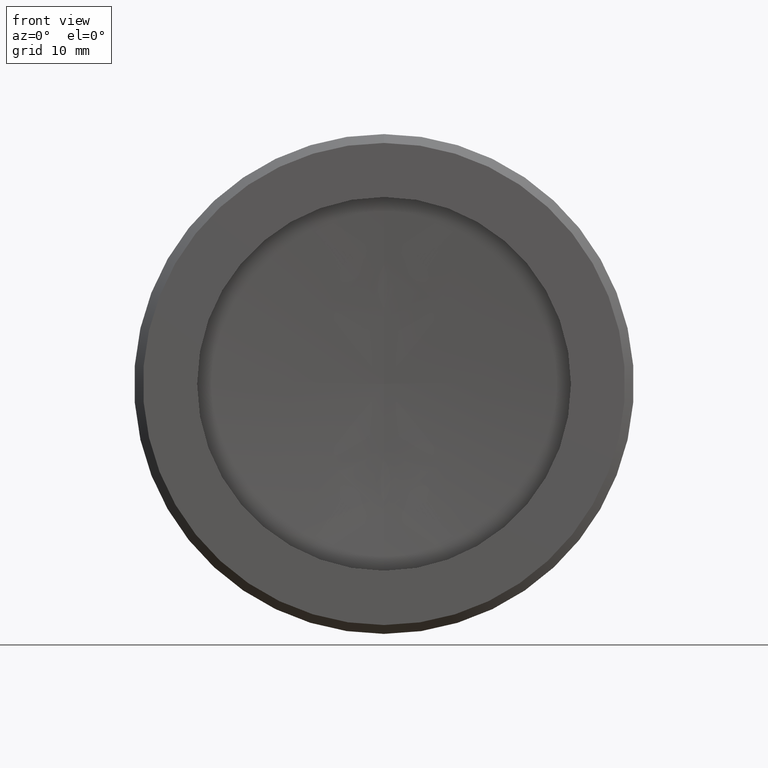
[diagram: clean part render]
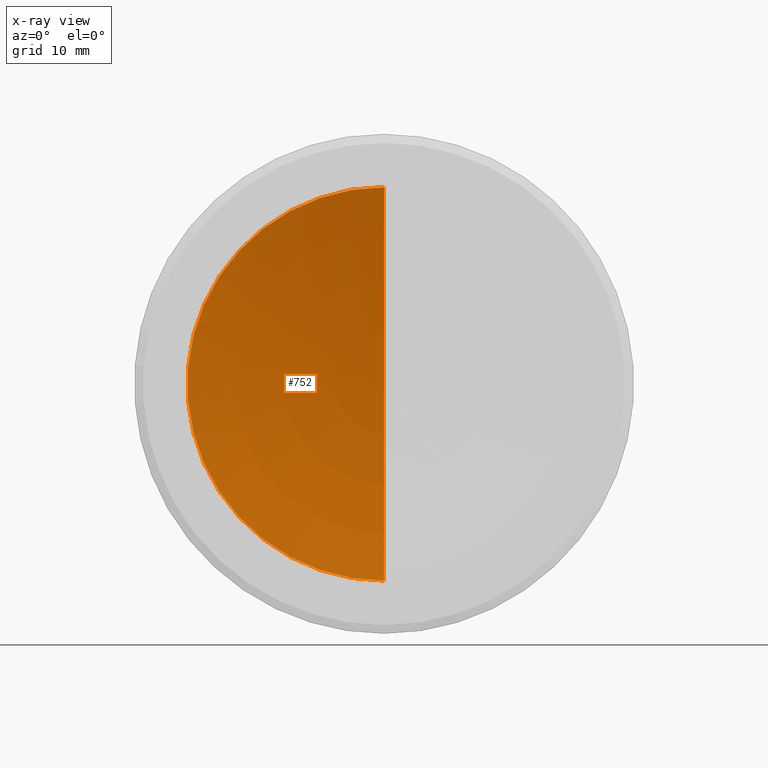
[diagram: x-ray — body ghosted, one internal face saturated and labeled with its STEP entity id]
A machine part, front view, then the same camera in x-ray: the body is ghosted and one INTERNAL B-rep face — a face not visible from any outside direction — is saturated and labeled: STEP entity #752.
In plain terms, the highlighted spherical surface has radius 69.82 mm.
Its self-contained STEP definition (entity closure, byte-faithful):
#1 = EDGE_CURVE ( 'NONE', #374, #1029, #334, .T. ) ;
#29 = DIRECTION ( 'NONE',  ( -9.897506743673268848E-16, 1.000000000000000000, -1.231408550798358634E-16 ) ) ;
#218 = DIRECTION ( 'NONE',  ( 2.484565276391874635E-17, -1.987652221113499708E-16, -1.000000000000000000 ) ) ;
#222 = ORIENTED_EDGE ( 'NONE', *, *, #1640, .T. ) ;
#333 = CARTESIAN_POINT ( 'NONE',  ( -8.905217641199447698, -18.21566707177763078, 46.65036394347460202 ) ) ;
#334 = CIRCLE ( 'NONE', #614, 20.00000000000000711 ) ;
#374 = VERTEX_POINT ( 'NONE', #1656 ) ;
#437 = DIRECTION ( 'NONE',  ( 0.000000000000000000, 1.734723475976806601E-16, 1.000000000000000000 ) ) ;
#485 = CIRCLE ( 'NONE', #1464, 69.82000000000000739 ) ;
#503 = DIRECTION ( 'NONE',  ( 1.242282638195937441E-16, -1.987652221113499708E-16, -1.000000000000000000 ) ) ;
#614 = AXIS2_PLACEMENT_3D ( 'NONE', #1619, #29, #437 ) ;
#734 = CARTESIAN_POINT ( 'NONE',  ( -8.905217641199378420, -85.10985516013120389, 26.65036394347460558 ) ) ;
#745 = DIRECTION ( 'NONE',  ( 9.897506743673268848E-16, -1.000000000000000000, 1.987652221113500201E-16 ) ) ;
#752 = ADVANCED_FACE ( 'NONE', ( #874 ), #1416, .T. ) ;
#793 = DIRECTION ( 'NONE',  ( -1.000000000000000000, -9.897506743673268848E-16, -1.363424677225496542E-16 ) ) ;
#874 = FACE_OUTER_BOUND ( 'NONE', #1446, .T. ) ;
#1029 = VERTEX_POINT ( 'NONE', #333 ) ;
#1112 = AXIS2_PLACEMENT_3D ( 'NONE', #734, #745, #218 ) ;
#1416 = SPHERICAL_SURFACE ( 'NONE', #1112, 69.81999999999999318 ) ;
#1446 = EDGE_LOOP ( 'NONE', ( #1653, #222 ) ) ;
#1464 = AXIS2_PLACEMENT_3D ( 'NONE', #1712, #793, #503 ) ;
#1619 = CARTESIAN_POINT ( 'NONE',  ( -8.905217641199445922, -18.21566707177763078, 26.65036394347459847 ) ) ;
#1640 = EDGE_CURVE ( 'NONE', #1029, #374, #485, .T. ) ;
#1653 = ORIENTED_EDGE ( 'NONE', *, *, #1, .T. ) ;
#1656 = CARTESIAN_POINT ( 'NONE',  ( -8.905217641199445922, -18.21566707177763078, 6.650363943474593142 ) ) ;
#1712 = CARTESIAN_POINT ( 'NONE',  ( -8.905217641199378420, -85.10985516013120389, 26.65036394347460558 ) ) ;